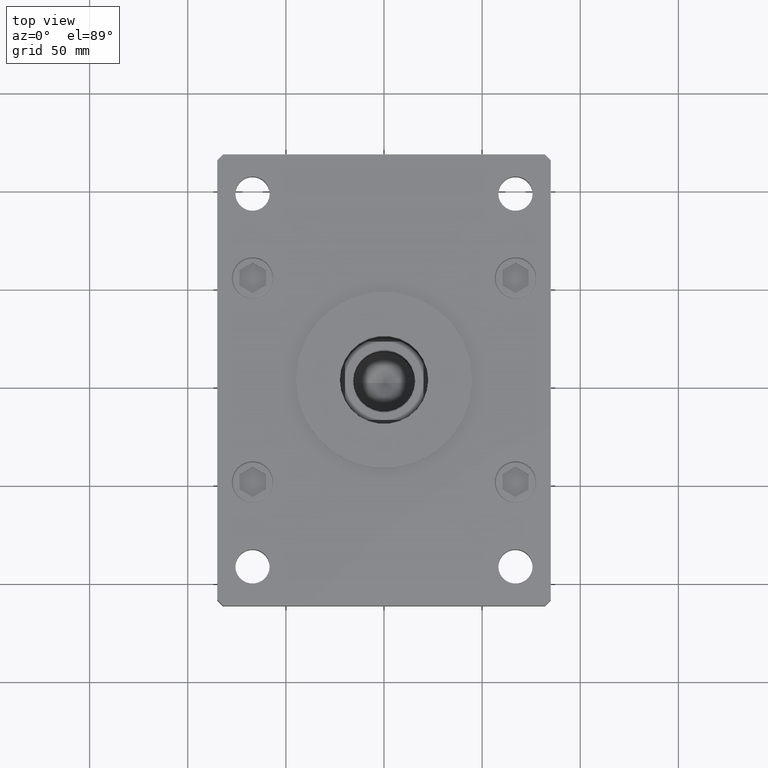
[diagram: clean part render]
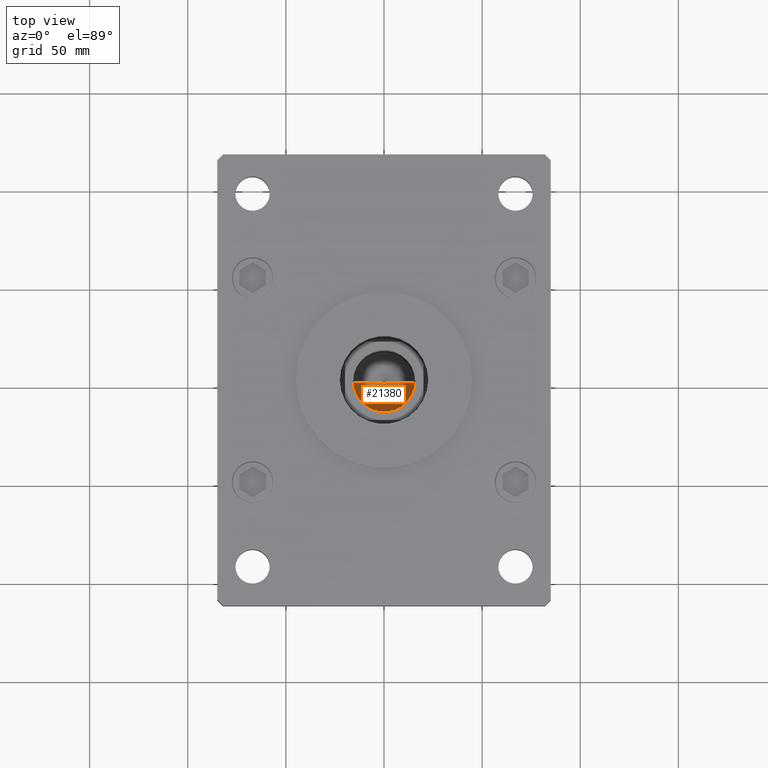
[diagram: same view with one face highlighted and labeled with its STEP entity id]
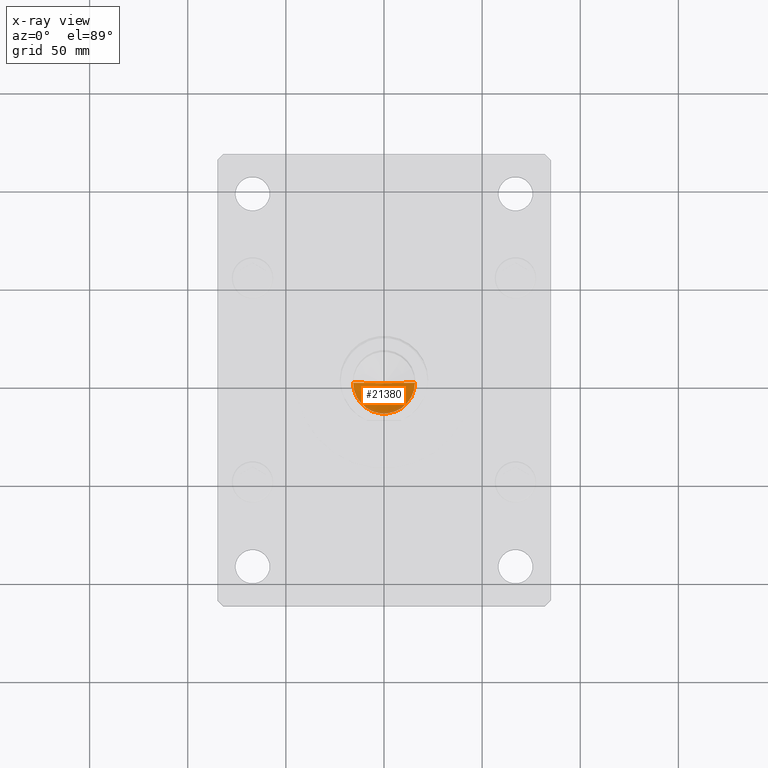
[diagram: x-ray of the same camera — body ghosted, the highlighted face saturated]
A machine part, top view. The second image highlights one B-rep face of the part: STEP entity #21380.
The next image is the same camera in x-ray: the body ghosted, the highlighted face saturated — about 8% of this face is hidden behind the body in this view.
In plain terms, the highlighted conical surface has half-angle 59 deg.
Its self-contained STEP definition (entity closure, byte-faithful):
#2829 = EDGE_CURVE ( 'NONE', #36950, #5231, #12646, .T. ) ;
#5167 = ORIENTED_EDGE ( 'NONE', *, *, #45779, .T. ) ;
#5231 = VERTEX_POINT ( 'NONE', #14718 ) ;
#5351 = DIRECTION ( 'NONE',  ( 1.000000000000000000, 0.000000000000000000, 0.000000000000000000 ) ) ;
#8130 = DIRECTION ( 'NONE',  ( -0.000000000000000000, -0.000000000000000000, 1.000000000000000000 ) ) ;
#10327 = CONICAL_SURFACE ( 'NONE', #31898, 15.74999999999998934, 1.029744258676653645 ) ;
#11797 = AXIS2_PLACEMENT_3D ( 'NONE', #53362, #8130, #23577 ) ;
#12646 = CIRCLE ( 'NONE', #11797, 15.74999999999998934 ) ;
#13453 = CARTESIAN_POINT ( 'NONE',  ( -15.74999999999998934, 1.928818708657080161E-15, 119.0000000000000284 ) ) ;
#14718 = CARTESIAN_POINT ( 'NONE',  ( 15.74999999999998934, 0.000000000000000000, 119.0000000000000284 ) ) ;
#18605 = DIRECTION ( 'NONE',  ( -0.000000000000000000, -0.000000000000000000, 1.000000000000000000 ) ) ;
#20324 = VECTOR ( 'NONE', #51620, 1000.000000000000000 ) ;
#20407 = VECTOR ( 'NONE', #30983, 1000.000000000000000 ) ;
#21380 = ADVANCED_FACE ( 'NONE', ( #42722 ), #10327, .F. ) ;
#23577 = DIRECTION ( 'NONE',  ( 1.000000000000000000, 0.000000000000000000, 0.000000000000000000 ) ) ;
#24455 = ORIENTED_EDGE ( 'NONE', *, *, #42856, .F. ) ;
#24528 = EDGE_LOOP ( 'NONE', ( #24455, #5167, #53168 ) ) ;
#26201 = CARTESIAN_POINT ( 'NONE',  ( -1.480675244360640996E-14, 0.000000000000000000, 109.5364452503159498 ) ) ;
#30983 = DIRECTION ( 'NONE',  ( -0.8571673007021118895, 1.049727191138618079E-16, 0.5150380749100549327 ) ) ;
#31898 = AXIS2_PLACEMENT_3D ( 'NONE', #51650, #18605, #5351 ) ;
#36950 = VERTEX_POINT ( 'NONE', #13453 ) ;
#38589 = CARTESIAN_POINT ( 'NONE',  ( -15.74999999999998934, 1.928818708657080161E-15, 119.0000000000000284 ) ) ;
#38969 = VERTEX_POINT ( 'NONE', #26201 ) ;
#39652 = LINE ( 'NONE', #38589, #20407 ) ;
#42722 = FACE_OUTER_BOUND ( 'NONE', #24528, .T. ) ;
#42856 = EDGE_CURVE ( 'NONE', #38969, #5231, #48351, .T. ) ;
#44026 = CARTESIAN_POINT ( 'NONE',  ( 15.74999999999998934, 0.000000000000000000, 119.0000000000000284 ) ) ;
#45779 = EDGE_CURVE ( 'NONE', #38969, #36950, #39652, .T. ) ;
#48351 = LINE ( 'NONE', #44026, #20324 ) ;
#51620 = DIRECTION ( 'NONE',  ( 0.8571673007021118895, 0.000000000000000000, 0.5150380749100549327 ) ) ;
#51650 = CARTESIAN_POINT ( 'NONE',  ( 0.000000000000000000, 0.000000000000000000, 119.0000000000000284 ) ) ;
#53168 = ORIENTED_EDGE ( 'NONE', *, *, #2829, .T. ) ;
#53362 = CARTESIAN_POINT ( 'NONE',  ( 0.000000000000000000, 0.000000000000000000, 119.0000000000000284 ) ) ;